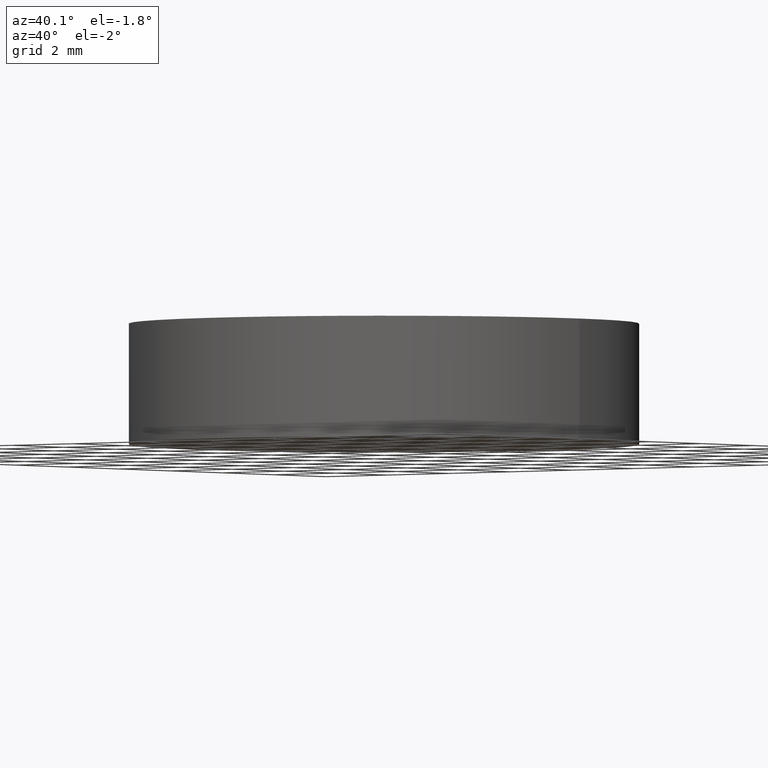
[diagram: clean part render]
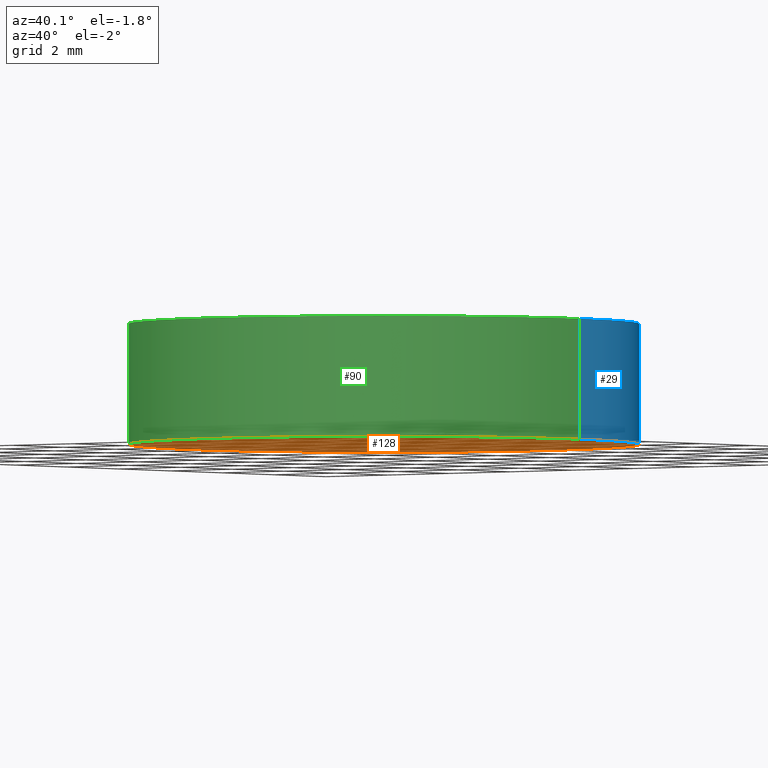
[diagram: same view with three faces highlighted in distinct colors, each labeled with its STEP entity id]
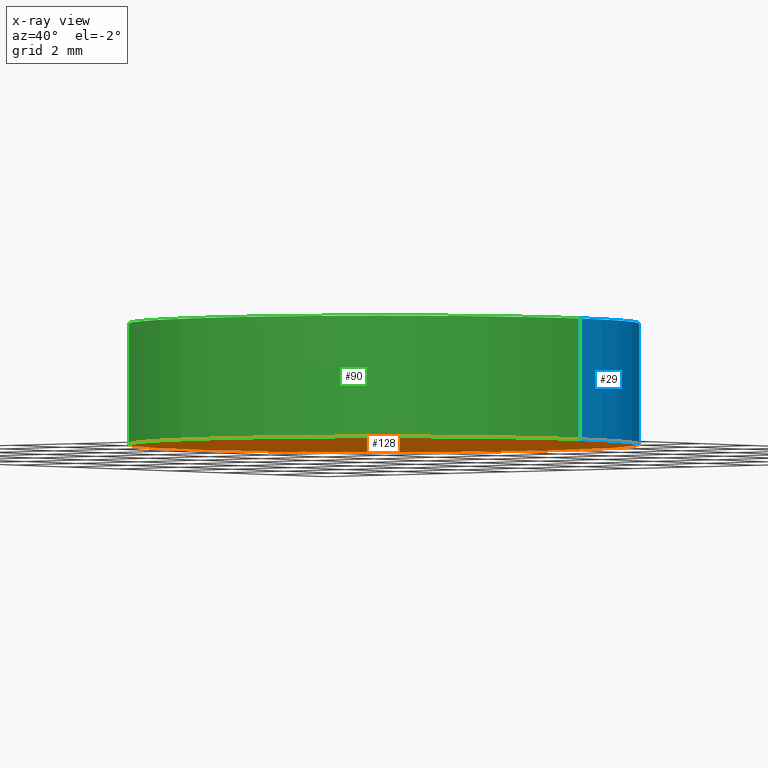
[diagram: x-ray of the same camera — body ghosted, the three highlighted faces saturated]
A machine part, auxiliary view with three faces highlighted in distinct colors.
The next image is the same camera in x-ray (body ghosted, the three faces saturated) — at least one of them is partly hidden behind the body in this view.
Their STEP definitions:

[orange] entity #128 — the highlighted planar face has unit normal (0, 0, 1).
#2 = CARTESIAN_POINT ( 'NONE',  ( 0.0000000000000000000, 0.0000000000000000000, 0.0000000000000000000 ) ) ;
#17 = ORIENTED_EDGE ( 'NONE', *, *, #85, .F. ) ;
#23 = DIRECTION ( 'NONE',  ( 0.0000000000000000000, 0.0000000000000000000, 1.000000000000000000 ) ) ;
#24 = DIRECTION ( 'NONE',  ( 1.000000000000000000, 0.0000000000000000000, 0.0000000000000000000 ) ) ;
#38 = PLANE ( 'NONE',  #59 ) ;
#39 = CARTESIAN_POINT ( 'NONE',  ( 0.0000000000000000000, 0.0000000000000000000, 0.0000000000000000000 ) ) ;
#52 = ORIENTED_EDGE ( 'NONE', *, *, #99, .F. ) ;
#54 = VERTEX_POINT ( 'NONE', #126 ) ;
#57 = FACE_OUTER_BOUND ( 'NONE', #110, .T. ) ;
#58 = DIRECTION ( 'NONE',  ( 1.000000000000000000, 0.0000000000000000000, -0.0000000000000000000 ) ) ;
#59 = AXIS2_PLACEMENT_3D ( 'NONE', #2, #133, #58 ) ;
#78 = AXIS2_PLACEMENT_3D ( 'NONE', #105, #23, #97 ) ;
#85 = EDGE_CURVE ( 'NONE', #54, #102, #95, .T. ) ;
#95 = CIRCLE ( 'NONE', #112, 6.349999999999999600 ) ;
#97 = DIRECTION ( 'NONE',  ( 1.000000000000000000, 0.0000000000000000000, 0.0000000000000000000 ) ) ;
#99 = EDGE_CURVE ( 'NONE', #102, #54, #120, .T. ) ;
#102 = VERTEX_POINT ( 'NONE', #116 ) ;
#105 = CARTESIAN_POINT ( 'NONE',  ( 0.0000000000000000000, 0.0000000000000000000, 0.0000000000000000000 ) ) ;
#106 = DIRECTION ( 'NONE',  ( 0.0000000000000000000, 0.0000000000000000000, 1.000000000000000000 ) ) ;
#110 = EDGE_LOOP ( 'NONE', ( #17, #52 ) ) ;
#112 = AXIS2_PLACEMENT_3D ( 'NONE', #39, #106, #24 ) ;
#116 = CARTESIAN_POINT ( 'NONE',  ( 6.349999999999999600, 7.776507174585692200E-016, 0.0000000000000000000 ) ) ;
#120 = CIRCLE ( 'NONE', #78, 6.349999999999999600 ) ;
#126 = CARTESIAN_POINT ( 'NONE',  ( -6.349999999999999600, 0.0000000000000000000, 0.0000000000000000000 ) ) ;
#128 = ADVANCED_FACE ( 'NONE', ( #57 ), #38, .F. ) ;
#133 = DIRECTION ( 'NONE',  ( 0.0000000000000000000, 0.0000000000000000000, 1.000000000000000000 ) ) ;

[blue] entity #29 — the highlighted cylindrical surface (partial cylindrical patch) has radius 6.35 mm, axis along (-0, -0, -1).
#3 = DIRECTION ( 'NONE',  ( 0.0000000000000000000, 0.0000000000000000000, 1.000000000000000000 ) ) ;
#8 = FACE_OUTER_BOUND ( 'NONE', #137, .T. ) ;
#9 = ORIENTED_EDGE ( 'NONE', *, *, #99, .T. ) ;
#15 = CARTESIAN_POINT ( 'NONE',  ( 0.0000000000000000000, 0.0000000000000000000, 3.000000000000000000 ) ) ;
#23 = DIRECTION ( 'NONE',  ( 0.0000000000000000000, 0.0000000000000000000, 1.000000000000000000 ) ) ;
#29 = ADVANCED_FACE ( 'NONE', ( #8 ), #66, .T. ) ;
#34 = VECTOR ( 'NONE', #40, 1000.000000000000000 ) ;
#37 = AXIS2_PLACEMENT_3D ( 'NONE', #15, #88, #109 ) ;
#40 = DIRECTION ( 'NONE',  ( -0.0000000000000000000, -0.0000000000000000000, -1.000000000000000000 ) ) ;
#50 = LINE ( 'NONE', #136, #34 ) ;
#51 = AXIS2_PLACEMENT_3D ( 'NONE', #86, #3, #72 ) ;
#54 = VERTEX_POINT ( 'NONE', #126 ) ;
#60 = CARTESIAN_POINT ( 'NONE',  ( -6.349999999999999600, 0.0000000000000000000, 3.000000000000000000 ) ) ;
#62 = DIRECTION ( 'NONE',  ( -0.0000000000000000000, -0.0000000000000000000, -1.000000000000000000 ) ) ;
#63 = CIRCLE ( 'NONE', #51, 6.349999999999999600 ) ;
#64 = EDGE_CURVE ( 'NONE', #117, #54, #50, .T. ) ;
#66 = CYLINDRICAL_SURFACE ( 'NONE', #37, 6.349999999999999600 ) ;
#69 = LINE ( 'NONE', #107, #125 ) ;
#72 = DIRECTION ( 'NONE',  ( 1.000000000000000000, 0.0000000000000000000, 0.0000000000000000000 ) ) ;
#74 = EDGE_CURVE ( 'NONE', #127, #102, #69, .T. ) ;
#77 = ORIENTED_EDGE ( 'NONE', *, *, #74, .T. ) ;
#78 = AXIS2_PLACEMENT_3D ( 'NONE', #105, #23, #97 ) ;
#80 = ORIENTED_EDGE ( 'NONE', *, *, #64, .F. ) ;
#86 = CARTESIAN_POINT ( 'NONE',  ( 0.0000000000000000000, 0.0000000000000000000, 3.000000000000000000 ) ) ;
#88 = DIRECTION ( 'NONE',  ( -0.0000000000000000000, -0.0000000000000000000, -1.000000000000000000 ) ) ;
#89 = EDGE_CURVE ( 'NONE', #127, #117, #63, .T. ) ;
#97 = DIRECTION ( 'NONE',  ( 1.000000000000000000, 0.0000000000000000000, 0.0000000000000000000 ) ) ;
#99 = EDGE_CURVE ( 'NONE', #102, #54, #120, .T. ) ;
#102 = VERTEX_POINT ( 'NONE', #116 ) ;
#105 = CARTESIAN_POINT ( 'NONE',  ( 0.0000000000000000000, 0.0000000000000000000, 0.0000000000000000000 ) ) ;
#107 = CARTESIAN_POINT ( 'NONE',  ( 6.349999999999999600, 7.776507174585692200E-016, 3.000000000000000000 ) ) ;
#109 = DIRECTION ( 'NONE',  ( -1.000000000000000000, 0.0000000000000000000, 0.0000000000000000000 ) ) ;
#116 = CARTESIAN_POINT ( 'NONE',  ( 6.349999999999999600, 7.776507174585692200E-016, 0.0000000000000000000 ) ) ;
#117 = VERTEX_POINT ( 'NONE', #60 ) ;
#120 = CIRCLE ( 'NONE', #78, 6.349999999999999600 ) ;
#125 = VECTOR ( 'NONE', #62, 1000.000000000000000 ) ;
#126 = CARTESIAN_POINT ( 'NONE',  ( -6.349999999999999600, 0.0000000000000000000, 0.0000000000000000000 ) ) ;
#127 = VERTEX_POINT ( 'NONE', #134 ) ;
#134 = CARTESIAN_POINT ( 'NONE',  ( 6.349999999999999600, 7.776507174585692200E-016, 3.000000000000000000 ) ) ;
#136 = CARTESIAN_POINT ( 'NONE',  ( -6.349999999999999600, 0.0000000000000000000, 3.000000000000000000 ) ) ;
#137 = EDGE_LOOP ( 'NONE', ( #139, #77, #9, #80 ) ) ;
#139 = ORIENTED_EDGE ( 'NONE', *, *, #89, .F. ) ;

[green] entity #90 — the highlighted cylindrical surface (partial cylindrical patch) has radius 6.35 mm, axis along (-0, -0, -1).
#5 = DIRECTION ( 'NONE',  ( 1.000000000000000000, 0.0000000000000000000, 0.0000000000000000000 ) ) ;
#7 = EDGE_CURVE ( 'NONE', #117, #127, #41, .T. ) ;
#13 = CARTESIAN_POINT ( 'NONE',  ( 0.0000000000000000000, 0.0000000000000000000, 3.000000000000000000 ) ) ;
#16 = EDGE_LOOP ( 'NONE', ( #108, #101, #45, #131 ) ) ;
#19 = AXIS2_PLACEMENT_3D ( 'NONE', #26, #53, #5 ) ;
#24 = DIRECTION ( 'NONE',  ( 1.000000000000000000, 0.0000000000000000000, 0.0000000000000000000 ) ) ;
#26 = CARTESIAN_POINT ( 'NONE',  ( 0.0000000000000000000, 0.0000000000000000000, 3.000000000000000000 ) ) ;
#34 = VECTOR ( 'NONE', #40, 1000.000000000000000 ) ;
#39 = CARTESIAN_POINT ( 'NONE',  ( 0.0000000000000000000, 0.0000000000000000000, 0.0000000000000000000 ) ) ;
#40 = DIRECTION ( 'NONE',  ( -0.0000000000000000000, -0.0000000000000000000, -1.000000000000000000 ) ) ;
#41 = CIRCLE ( 'NONE', #19, 6.349999999999999600 ) ;
#45 = ORIENTED_EDGE ( 'NONE', *, *, #64, .T. ) ;
#48 = DIRECTION ( 'NONE',  ( -1.000000000000000000, 0.0000000000000000000, 0.0000000000000000000 ) ) ;
#50 = LINE ( 'NONE', #136, #34 ) ;
#53 = DIRECTION ( 'NONE',  ( 0.0000000000000000000, 0.0000000000000000000, 1.000000000000000000 ) ) ;
#54 = VERTEX_POINT ( 'NONE', #126 ) ;
#60 = CARTESIAN_POINT ( 'NONE',  ( -6.349999999999999600, 0.0000000000000000000, 3.000000000000000000 ) ) ;
#61 = DIRECTION ( 'NONE',  ( -0.0000000000000000000, -0.0000000000000000000, -1.000000000000000000 ) ) ;
#62 = DIRECTION ( 'NONE',  ( -0.0000000000000000000, -0.0000000000000000000, -1.000000000000000000 ) ) ;
#64 = EDGE_CURVE ( 'NONE', #117, #54, #50, .T. ) ;
#67 = AXIS2_PLACEMENT_3D ( 'NONE', #13, #61, #48 ) ;
#69 = LINE ( 'NONE', #107, #125 ) ;
#74 = EDGE_CURVE ( 'NONE', #127, #102, #69, .T. ) ;
#85 = EDGE_CURVE ( 'NONE', #54, #102, #95, .T. ) ;
#90 = ADVANCED_FACE ( 'NONE', ( #98 ), #92, .T. ) ;
#92 = CYLINDRICAL_SURFACE ( 'NONE', #67, 6.349999999999999600 ) ;
#95 = CIRCLE ( 'NONE', #112, 6.349999999999999600 ) ;
#98 = FACE_OUTER_BOUND ( 'NONE', #16, .T. ) ;
#101 = ORIENTED_EDGE ( 'NONE', *, *, #7, .F. ) ;
#102 = VERTEX_POINT ( 'NONE', #116 ) ;
#106 = DIRECTION ( 'NONE',  ( 0.0000000000000000000, 0.0000000000000000000, 1.000000000000000000 ) ) ;
#107 = CARTESIAN_POINT ( 'NONE',  ( 6.349999999999999600, 7.776507174585692200E-016, 3.000000000000000000 ) ) ;
#108 = ORIENTED_EDGE ( 'NONE', *, *, #74, .F. ) ;
#112 = AXIS2_PLACEMENT_3D ( 'NONE', #39, #106, #24 ) ;
#116 = CARTESIAN_POINT ( 'NONE',  ( 6.349999999999999600, 7.776507174585692200E-016, 0.0000000000000000000 ) ) ;
#117 = VERTEX_POINT ( 'NONE', #60 ) ;
#125 = VECTOR ( 'NONE', #62, 1000.000000000000000 ) ;
#126 = CARTESIAN_POINT ( 'NONE',  ( -6.349999999999999600, 0.0000000000000000000, 0.0000000000000000000 ) ) ;
#127 = VERTEX_POINT ( 'NONE', #134 ) ;
#131 = ORIENTED_EDGE ( 'NONE', *, *, #85, .T. ) ;
#134 = CARTESIAN_POINT ( 'NONE',  ( 6.349999999999999600, 7.776507174585692200E-016, 3.000000000000000000 ) ) ;
#136 = CARTESIAN_POINT ( 'NONE',  ( -6.349999999999999600, 0.0000000000000000000, 3.000000000000000000 ) ) ;